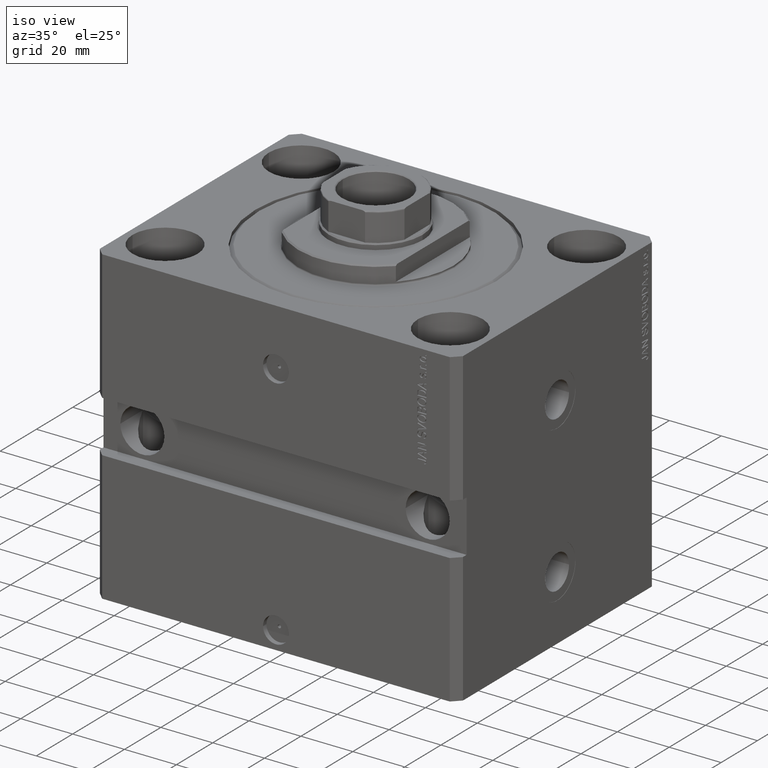
[diagram: clean part render]
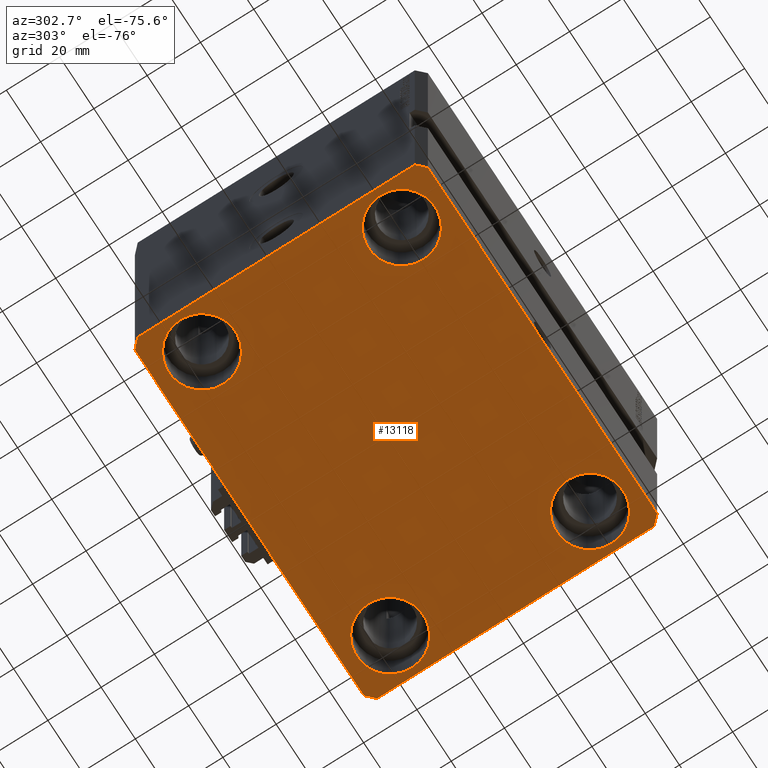
[diagram: tour spotlight — one face highlighted and labeled with its STEP entity id]
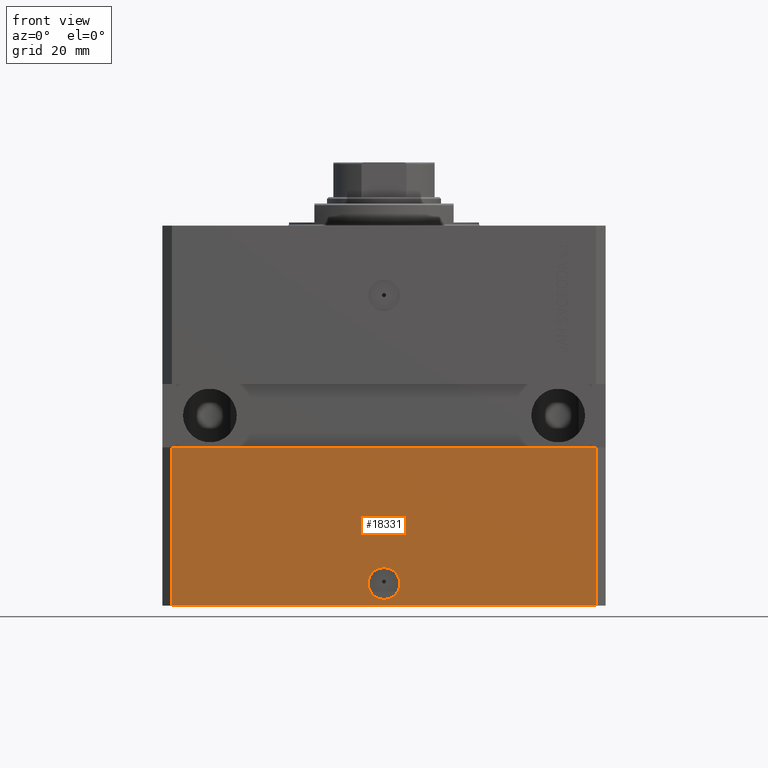
[diagram: tour spotlight — one face highlighted and labeled with its STEP entity id]
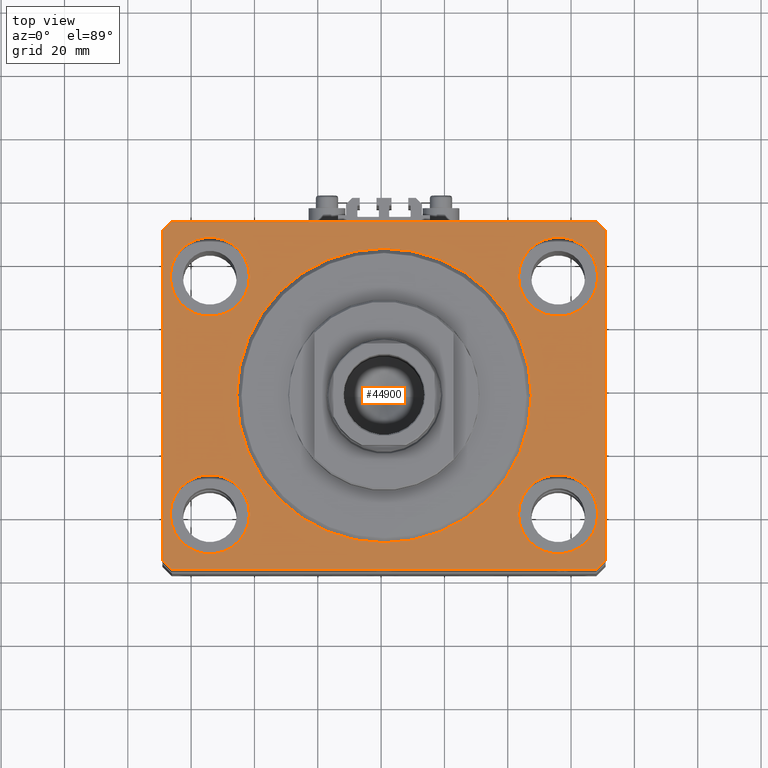
[diagram: tour spotlight — one face highlighted and labeled with its STEP entity id]
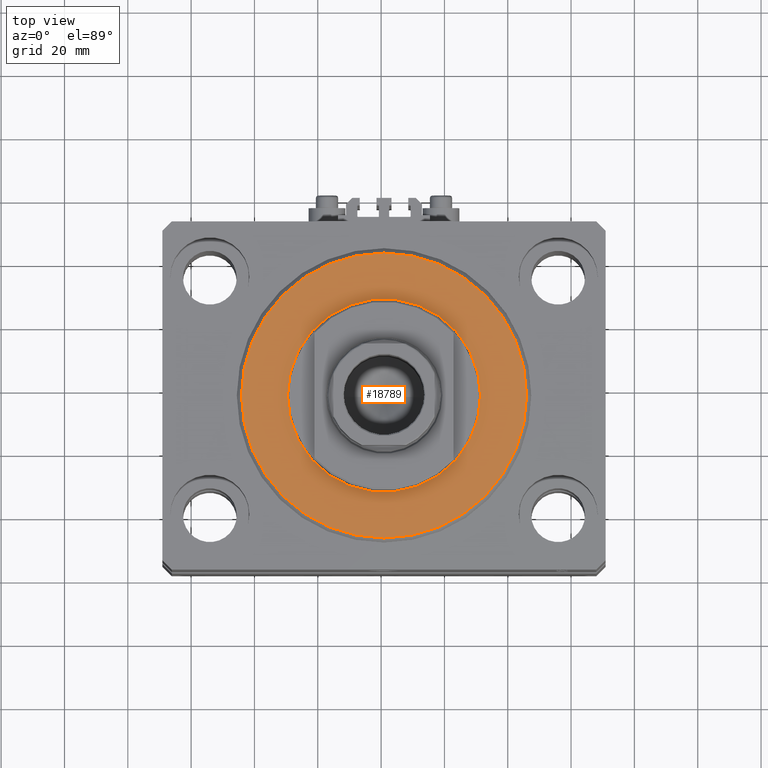
[diagram: tour spotlight — one face highlighted and labeled with its STEP entity id]
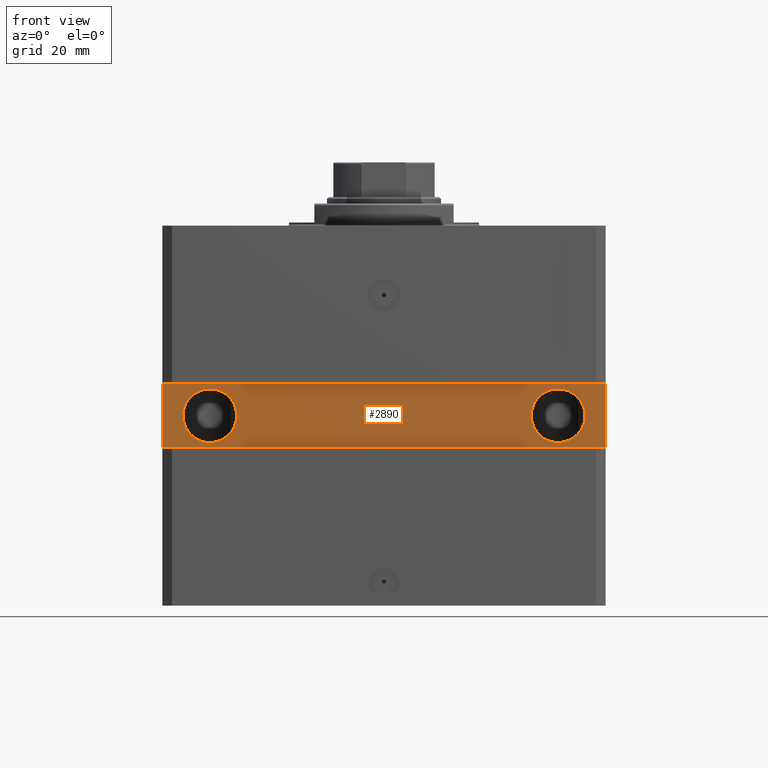
[diagram: tour spotlight — one face highlighted and labeled with its STEP entity id]
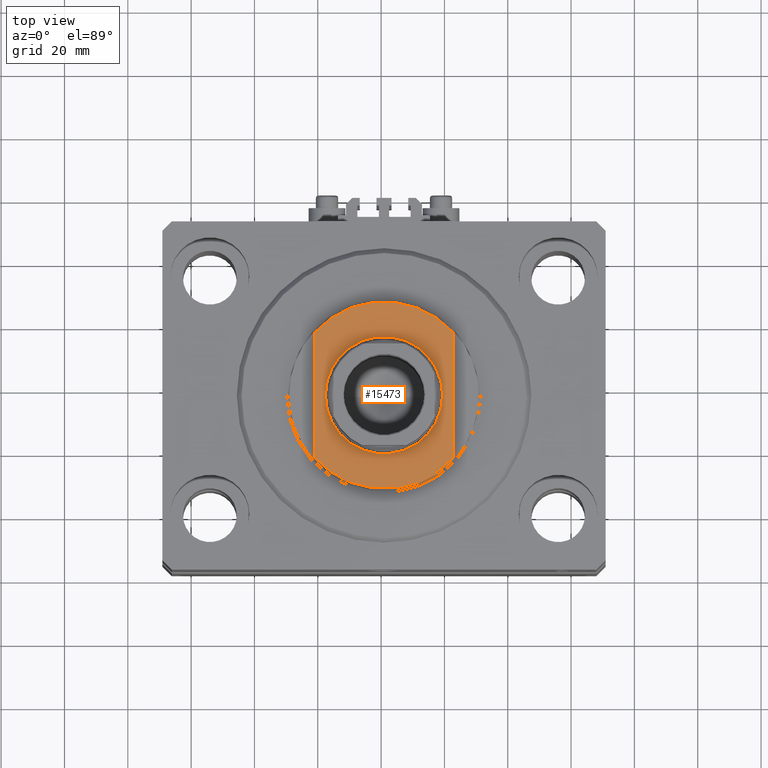
[diagram: tour spotlight — one face highlighted and labeled with its STEP entity id]
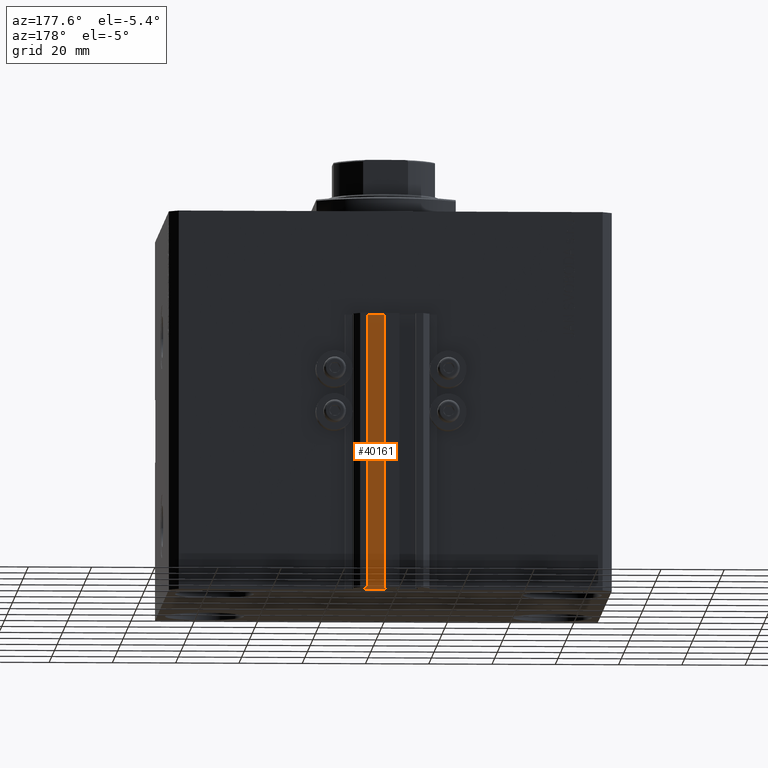
[diagram: tour spotlight — one face highlighted and labeled with its STEP entity id]
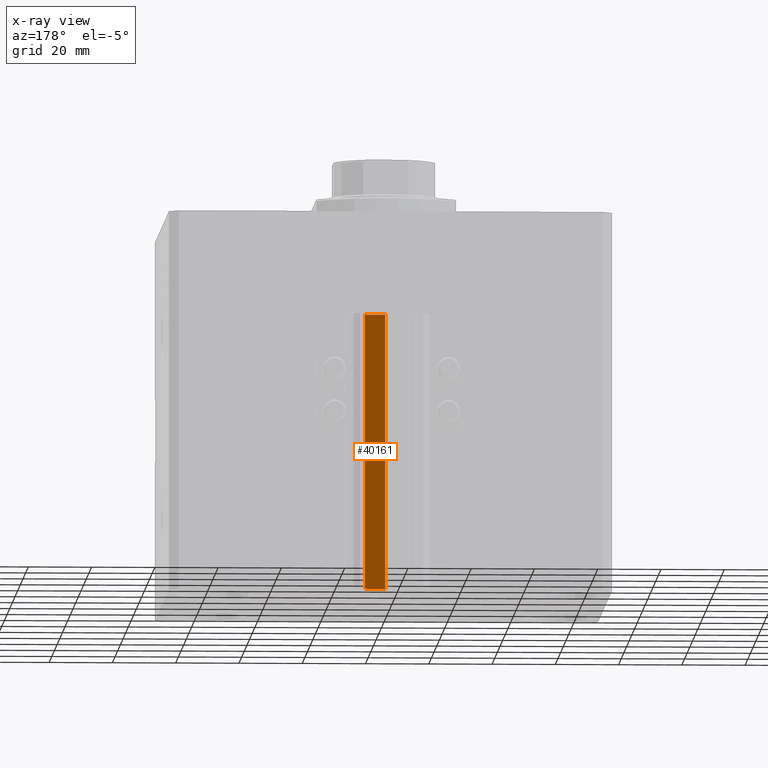
[diagram: x-ray of the same camera — body ghosted, this tour face saturated]
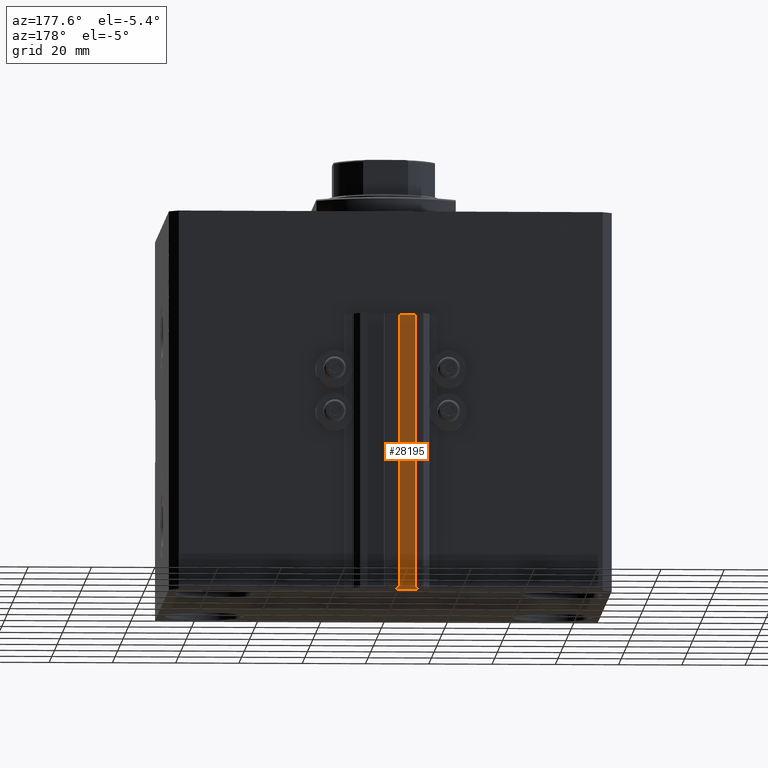
[diagram: tour spotlight — one face highlighted and labeled with its STEP entity id]
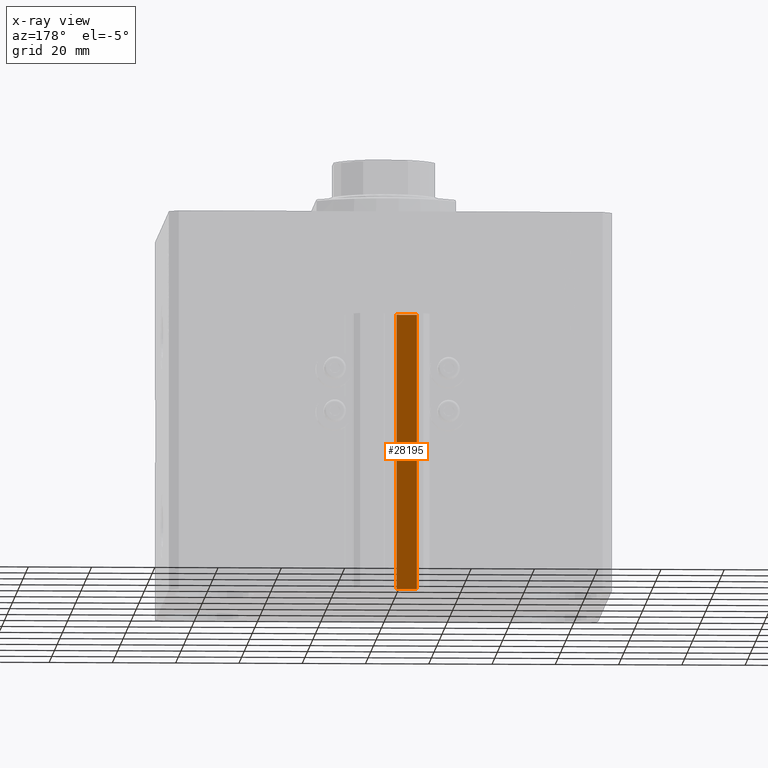
[diagram: x-ray of the same camera — body ghosted, this tour face saturated]
A machine part: a face-by-face anatomy tour. The part has 1129 B-rep faces; the first image is the clean iso view, then the 8 largest visible faces are spotlighted one at a time (largest first), each with its STEP entity span.

Face 1 — auxiliary view, entity #13118. In plain terms, the highlighted planar face has unit normal (0, 0, 1).
Definition (entity closure, byte-faithful):
#77 = ORIENTED_EDGE ( 'NONE', *, *, #21300, .T. ) ;
#148 = VECTOR ( 'NONE', #9613, 1000.000000000000000 ) ;
#483 = DIRECTION ( 'NONE',  ( 5.337610695313255329E-15, 1.000000000000000000, 0.000000000000000000 ) ) ;
#809 = ORIENTED_EDGE ( 'NONE', *, *, #30728, .T. ) ;
#2416 = DIRECTION ( 'NONE',  ( -0.000000000000000000, -0.000000000000000000, 1.000000000000000000 ) ) ;
#2713 = EDGE_CURVE ( 'NONE', #42835, #30656, #28236, .T. ) ;
#3144 = CARTESIAN_POINT ( 'NONE',  ( 55.00000000000000711, 37.50000000000002132, -120.0000000000000000 ) ) ;
#3494 = EDGE_CURVE ( 'NONE', #25304, #27204, #12242, .T. ) ;
#3918 = ORIENTED_EDGE ( 'NONE', *, *, #40495, .F. ) ;
#4311 = VERTEX_POINT ( 'NONE', #48289 ) ;
#4413 = EDGE_LOOP ( 'NONE', ( #77, #26732 ) ) ;
#4737 = FACE_BOUND ( 'NONE', #6452, .T. ) ;
#4899 = LINE ( 'NONE', #28607, #148 ) ;
#6452 = EDGE_LOOP ( 'NONE', ( #44544, #12126 ) ) ;
#6463 = DIRECTION ( 'NONE',  ( 1.000000000000000000, 0.000000000000000000, -0.000000000000000000 ) ) ;
#6507 = EDGE_CURVE ( 'NONE', #17872, #42129, #21939, .T. ) ;
#7271 = CIRCLE ( 'NONE', #12805, 12.49999999999999645 ) ;
#8209 = CARTESIAN_POINT ( 'NONE',  ( 55.00000000000000711, 37.50000000000002132, -120.0000000000000000 ) ) ;
#8478 = FACE_BOUND ( 'NONE', #4413, .T. ) ;
#9095 = CIRCLE ( 'NONE', #17894, 12.49999999999999645 ) ;
#9152 = CARTESIAN_POINT ( 'NONE',  ( 55.00000000000000711, -37.50000000000000711, -120.0000000000000000 ) ) ;
#9450 = DIRECTION ( 'NONE',  ( -0.000000000000000000, -0.000000000000000000, 1.000000000000000000 ) ) ;
#9613 = DIRECTION ( 'NONE',  ( 0.7071067811865466846, -0.7071067811865483499, 0.000000000000000000 ) ) ;
#10886 = CARTESIAN_POINT ( 'NONE',  ( -55.00000000000000711, 37.49999999999999289, -120.0000000000000000 ) ) ;
#10956 = CARTESIAN_POINT ( 'NONE',  ( 67.00000000000001421, -54.99999999999997868, -120.0000000000000000 ) ) ;
#10998 = VERTEX_POINT ( 'NONE', #13169 ) ;
#11083 = VECTOR ( 'NONE', #42647, 1000.000000000000000 ) ;
#12126 = ORIENTED_EDGE ( 'NONE', *, *, #46276, .T. ) ;
#12242 = LINE ( 'NONE', #49261, #19373 ) ;
#12333 = CARTESIAN_POINT ( 'NONE',  ( 42.50000000000000711, 37.50000000000002132, -120.0000000000000000 ) ) ;
#12780 = EDGE_CURVE ( 'NONE', #30364, #26383, #48183, .T. ) ;
#12805 = AXIS2_PLACEMENT_3D ( 'NONE', #22936, #38623, #38126 ) ;
#12848 = ORIENTED_EDGE ( 'NONE', *, *, #29944, .F. ) ;
#13118 = ADVANCED_FACE ( 'NONE', ( #15972, #46398, #8478, #4737, #23734 ), #35180, .F. ) ;
#13169 = CARTESIAN_POINT ( 'NONE',  ( 42.50000000000000711, -37.50000000000000711, -120.0000000000000000 ) ) ;
#13669 = EDGE_CURVE ( 'NONE', #44243, #48429, #15649, .T. ) ;
#13945 = CARTESIAN_POINT ( 'NONE',  ( -55.00000000000000711, -37.50000000000000711, -120.0000000000000000 ) ) ;
#13997 = CARTESIAN_POINT ( 'NONE',  ( -67.00000000000000000, 55.00000000000000000, -120.0000000000000000 ) ) ;
#14120 = VECTOR ( 'NONE', #22481, 1000.000000000000114 ) ;
#14288 = ORIENTED_EDGE ( 'NONE', *, *, #32856, .T. ) ;
#14810 = DIRECTION ( 'NONE',  ( 1.000000000000000000, 0.000000000000000000, 0.000000000000000000 ) ) ;
#14999 = AXIS2_PLACEMENT_3D ( 'NONE', #8209, #23215, #20447 ) ;
#15200 = LINE ( 'NONE', #34672, #23976 ) ;
#15443 = EDGE_CURVE ( 'NONE', #30656, #16294, #26463, .T. ) ;
#15649 = CIRCLE ( 'NONE', #34003, 12.49999999999999645 ) ;
#15972 = FACE_BOUND ( 'NONE', #38254, .T. ) ;
#16203 = ORIENTED_EDGE ( 'NONE', *, *, #41796, .T. ) ;
#16294 = VERTEX_POINT ( 'NONE', #24020 ) ;
#16528 = LINE ( 'NONE', #31020, #23266 ) ;
#17203 = ORIENTED_EDGE ( 'NONE', *, *, #37931, .F. ) ;
#17872 = VERTEX_POINT ( 'NONE', #29140 ) ;
#17894 = AXIS2_PLACEMENT_3D ( 'NONE', #9152, #28389, #28152 ) ;
#18088 = CARTESIAN_POINT ( 'NONE',  ( -55.00000000000000711, -37.50000000000000711, -120.0000000000000000 ) ) ;
#18184 = EDGE_LOOP ( 'NONE', ( #14288, #16203 ) ) ;
#19373 = VECTOR ( 'NONE', #27505, 1000.000000000000000 ) ;
#20119 = CIRCLE ( 'NONE', #41620, 12.49999999999999645 ) ;
#20447 = DIRECTION ( 'NONE',  ( 1.000000000000000000, 0.000000000000000000, 0.000000000000000000 ) ) ;
#20851 = ORIENTED_EDGE ( 'NONE', *, *, #12780, .F. ) ;
#20956 = CARTESIAN_POINT ( 'NONE',  ( 0.000000000000000000, 0.000000000000000000, -120.0000000000000000 ) ) ;
#21300 = EDGE_CURVE ( 'NONE', #42129, #17872, #26184, .T. ) ;
#21452 = CARTESIAN_POINT ( 'NONE',  ( -42.50000000000000711, -37.50000000000000711, -120.0000000000000000 ) ) ;
#21939 = CIRCLE ( 'NONE', #25131, 12.49999999999999645 ) ;
#22309 = CIRCLE ( 'NONE', #42176, 12.49999999999999645 ) ;
#22464 = CARTESIAN_POINT ( 'NONE',  ( 67.00000000000001421, -54.99999999999997868, -120.0000000000000000 ) ) ;
#22481 = DIRECTION ( 'NONE',  ( 0.7071067811865474617, 0.7071067811865474617, 0.000000000000000000 ) ) ;
#22936 = CARTESIAN_POINT ( 'NONE',  ( 55.00000000000000711, -37.50000000000000711, -120.0000000000000000 ) ) ;
#23215 = DIRECTION ( 'NONE',  ( -0.000000000000000000, -0.000000000000000000, 1.000000000000000000 ) ) ;
#23266 = VECTOR ( 'NONE', #28029, 1000.000000000000000 ) ;
#23578 = CARTESIAN_POINT ( 'NONE',  ( 70.00000000000056843, 51.99999999999996447, -120.0000000000000000 ) ) ;
#23734 = FACE_OUTER_BOUND ( 'NONE', #39827, .T. ) ;
#23775 = CARTESIAN_POINT ( 'NONE',  ( -69.99999999999998579, 51.99999999999999289, -120.0000000000000000 ) ) ;
#23976 = VECTOR ( 'NONE', #483, 1000.000000000000000 ) ;
#24001 = CARTESIAN_POINT ( 'NONE',  ( -67.50000000000000000, -37.50000000000000711, -120.0000000000000000 ) ) ;
#24020 = CARTESIAN_POINT ( 'NONE',  ( 70.00000000000000000, -51.99999999999999289, -120.0000000000000000 ) ) ;
#24321 = EDGE_CURVE ( 'NONE', #46031, #48537, #22309, .T. ) ;
#24489 = CARTESIAN_POINT ( 'NONE',  ( -67.00000000000001421, -55.00000000000000000, -120.0000000000000000 ) ) ;
#24658 = CARTESIAN_POINT ( 'NONE',  ( -67.00000000000001421, -55.00000000000000000, -120.0000000000000000 ) ) ;
#24958 = DIRECTION ( 'NONE',  ( 0.000000000000000000, 0.000000000000000000, 1.000000000000000000 ) ) ;
#24970 = DIRECTION ( 'NONE',  ( 1.000000000000000000, 0.000000000000000000, 0.000000000000000000 ) ) ;
#25131 = AXIS2_PLACEMENT_3D ( 'NONE', #3144, #9450, #49054 ) ;
#25304 = VERTEX_POINT ( 'NONE', #23578 ) ;
#26184 = CIRCLE ( 'NONE', #14999, 12.49999999999999645 ) ;
#26383 = VERTEX_POINT ( 'NONE', #23775 ) ;
#26463 = LINE ( 'NONE', #10956, #14120 ) ;
#26732 = ORIENTED_EDGE ( 'NONE', *, *, #6507, .T. ) ;
#27204 = VERTEX_POINT ( 'NONE', #28984 ) ;
#27505 = DIRECTION ( 'NONE',  ( -0.7071067811865344721, 0.7071067811865606734, 0.000000000000000000 ) ) ;
#27714 = ORIENTED_EDGE ( 'NONE', *, *, #42510, .F. ) ;
#28029 = DIRECTION ( 'NONE',  ( -2.668805347656626678E-16, -1.000000000000000000, 0.000000000000000000 ) ) ;
#28152 = DIRECTION ( 'NONE',  ( 1.000000000000000000, 0.000000000000000000, 0.000000000000000000 ) ) ;
#28236 = LINE ( 'NONE', #24489, #38480 ) ;
#28389 = DIRECTION ( 'NONE',  ( -0.000000000000000000, -0.000000000000000000, 1.000000000000000000 ) ) ;
#28607 = CARTESIAN_POINT ( 'NONE',  ( -70.00000000000001421, -51.99999999999999289, -120.0000000000000000 ) ) ;
#28984 = CARTESIAN_POINT ( 'NONE',  ( 67.00000000000061107, 55.00000000000002132, -120.0000000000000000 ) ) ;
#29140 = CARTESIAN_POINT ( 'NONE',  ( 67.50000000000000000, 37.50000000000002132, -120.0000000000000000 ) ) ;
#29196 = DIRECTION ( 'NONE',  ( -0.000000000000000000, -0.000000000000000000, 1.000000000000000000 ) ) ;
#29944 = EDGE_CURVE ( 'NONE', #4311, #42835, #4899, .T. ) ;
#30364 = VERTEX_POINT ( 'NONE', #37706 ) ;
#30656 = VERTEX_POINT ( 'NONE', #22464 ) ;
#30728 = EDGE_CURVE ( 'NONE', #48429, #44243, #20119, .T. ) ;
#31020 = CARTESIAN_POINT ( 'NONE',  ( -69.99999999999998579, 51.99999999999999289, -120.0000000000000000 ) ) ;
#31468 = CARTESIAN_POINT ( 'NONE',  ( -55.00000000000000711, 37.49999999999999289, -120.0000000000000000 ) ) ;
#31617 = ORIENTED_EDGE ( 'NONE', *, *, #15443, .F. ) ;
#31682 = CARTESIAN_POINT ( 'NONE',  ( 67.00000000000061107, 55.00000000000002132, -120.0000000000000000 ) ) ;
#31684 = ORIENTED_EDGE ( 'NONE', *, *, #3494, .F. ) ;
#32856 = EDGE_CURVE ( 'NONE', #10998, #37007, #9095, .T. ) ;
#33145 = CARTESIAN_POINT ( 'NONE',  ( -42.50000000000000711, 37.49999999999999289, -120.0000000000000000 ) ) ;
#33746 = ORIENTED_EDGE ( 'NONE', *, *, #2713, .F. ) ;
#34003 = AXIS2_PLACEMENT_3D ( 'NONE', #18088, #48995, #14810 ) ;
#34380 = AXIS2_PLACEMENT_3D ( 'NONE', #31468, #43409, #24970 ) ;
#34672 = CARTESIAN_POINT ( 'NONE',  ( 70.00000000000000000, -51.99999999999999289, -120.0000000000000000 ) ) ;
#35180 = PLANE ( 'NONE',  #41127 ) ;
#36963 = DIRECTION ( 'NONE',  ( -0.7071067811865451302, -0.7071067811865500152, 0.000000000000000000 ) ) ;
#37007 = VERTEX_POINT ( 'NONE', #48293 ) ;
#37706 = CARTESIAN_POINT ( 'NONE',  ( -67.00000000000000000, 55.00000000000000000, -120.0000000000000000 ) ) ;
#37931 = EDGE_CURVE ( 'NONE', #27204, #30364, #45904, .T. ) ;
#38126 = DIRECTION ( 'NONE',  ( 1.000000000000000000, 0.000000000000000000, 0.000000000000000000 ) ) ;
#38254 = EDGE_LOOP ( 'NONE', ( #809, #40885 ) ) ;
#38480 = VECTOR ( 'NONE', #40421, 1000.000000000000000 ) ;
#38623 = DIRECTION ( 'NONE',  ( -0.000000000000000000, -0.000000000000000000, 1.000000000000000000 ) ) ;
#38735 = VECTOR ( 'NONE', #36963, 1000.000000000000114 ) ;
#39827 = EDGE_LOOP ( 'NONE', ( #17203, #31684, #3918, #31617, #33746, #12848, #27714, #20851 ) ) ;
#40421 = DIRECTION ( 'NONE',  ( 1.000000000000000000, 1.553483709829976241E-16, 0.000000000000000000 ) ) ;
#40495 = EDGE_CURVE ( 'NONE', #16294, #25304, #15200, .T. ) ;
#40885 = ORIENTED_EDGE ( 'NONE', *, *, #13669, .T. ) ;
#41127 = AXIS2_PLACEMENT_3D ( 'NONE', #20956, #24958, #6463 ) ;
#41620 = AXIS2_PLACEMENT_3D ( 'NONE', #13945, #29196, #48375 ) ;
#41702 = CARTESIAN_POINT ( 'NONE',  ( -67.50000000000000000, 37.49999999999999289, -120.0000000000000000 ) ) ;
#41796 = EDGE_CURVE ( 'NONE', #37007, #10998, #7271, .T. ) ;
#42129 = VERTEX_POINT ( 'NONE', #12333 ) ;
#42176 = AXIS2_PLACEMENT_3D ( 'NONE', #10886, #2416, #48078 ) ;
#42510 = EDGE_CURVE ( 'NONE', #26383, #4311, #16528, .T. ) ;
#42647 = DIRECTION ( 'NONE',  ( -1.000000000000000000, -1.553483709829969339E-16, 0.000000000000000000 ) ) ;
#42835 = VERTEX_POINT ( 'NONE', #24658 ) ;
#43409 = DIRECTION ( 'NONE',  ( -0.000000000000000000, -0.000000000000000000, 1.000000000000000000 ) ) ;
#44243 = VERTEX_POINT ( 'NONE', #21452 ) ;
#44544 = ORIENTED_EDGE ( 'NONE', *, *, #24321, .T. ) ;
#45526 = CIRCLE ( 'NONE', #34380, 12.49999999999999645 ) ;
#45904 = LINE ( 'NONE', #31682, #11083 ) ;
#46031 = VERTEX_POINT ( 'NONE', #41702 ) ;
#46276 = EDGE_CURVE ( 'NONE', #48537, #46031, #45526, .T. ) ;
#46398 = FACE_BOUND ( 'NONE', #18184, .T. ) ;
#48078 = DIRECTION ( 'NONE',  ( 1.000000000000000000, 0.000000000000000000, 0.000000000000000000 ) ) ;
#48183 = LINE ( 'NONE', #13997, #38735 ) ;
#48289 = CARTESIAN_POINT ( 'NONE',  ( -70.00000000000001421, -51.99999999999999289, -120.0000000000000000 ) ) ;
#48293 = CARTESIAN_POINT ( 'NONE',  ( 67.50000000000000000, -37.50000000000000711, -120.0000000000000000 ) ) ;
#48375 = DIRECTION ( 'NONE',  ( 1.000000000000000000, 0.000000000000000000, 0.000000000000000000 ) ) ;
#48429 = VERTEX_POINT ( 'NONE', #24001 ) ;
#48537 = VERTEX_POINT ( 'NONE', #33145 ) ;
#48995 = DIRECTION ( 'NONE',  ( -0.000000000000000000, -0.000000000000000000, 1.000000000000000000 ) ) ;
#49054 = DIRECTION ( 'NONE',  ( 1.000000000000000000, 0.000000000000000000, 0.000000000000000000 ) ) ;
#49261 = CARTESIAN_POINT ( 'NONE',  ( 70.00000000000056843, 51.99999999999996447, -120.0000000000000000 ) ) ;

Face 2 — front view, entity #18331. In plain terms, the highlighted planar face has unit normal (0, -1, 0).
Definition (entity closure, byte-faithful):
#1 = ORIENTED_EDGE ( 'NONE', *, *, #33187, .F. ) ;
#1769 = DIRECTION ( 'NONE',  ( 1.000000000000000000, 0.000000000000000000, 0.000000000000000000 ) ) ;
#2713 = EDGE_CURVE ( 'NONE', #42835, #30656, #28236, .T. ) ;
#4213 = VERTEX_POINT ( 'NONE', #28127 ) ;
#4775 = EDGE_CURVE ( 'NONE', #20469, #37375, #26606, .T. ) ;
#4833 = ORIENTED_EDGE ( 'NONE', *, *, #4775, .F. ) ;
#6216 = LINE ( 'NONE', #41144, #30916 ) ;
#8565 = LINE ( 'NONE', #31543, #11160 ) ;
#9048 = AXIS2_PLACEMENT_3D ( 'NONE', #43440, #12988, #1769 ) ;
#10241 = AXIS2_PLACEMENT_3D ( 'NONE', #15548, #30786, #45981 ) ;
#10700 = ORIENTED_EDGE ( 'NONE', *, *, #2713, .T. ) ;
#10899 = ORIENTED_EDGE ( 'NONE', *, *, #25264, .T. ) ;
#11160 = VECTOR ( 'NONE', #36416, 1000.000000000000000 ) ;
#11618 = ORIENTED_EDGE ( 'NONE', *, *, #20570, .F. ) ;
#12988 = DIRECTION ( 'NONE',  ( 1.176083712526788232E-16, -1.000000000000000000, 0.000000000000000000 ) ) ;
#15548 = CARTESIAN_POINT ( 'NONE',  ( -67.00000000000001421, -55.00000000000000000, -120.0000000000000000 ) ) ;
#15795 = FACE_BOUND ( 'NONE', #42774, .T. ) ;
#17570 = EDGE_CURVE ( 'NONE', #42835, #31843, #6216, .T. ) ;
#18331 = ADVANCED_FACE ( 'NONE', ( #15795, #31028 ), #35005, .T. ) ;
#20469 = VERTEX_POINT ( 'NONE', #26940 ) ;
#20570 = EDGE_CURVE ( 'NONE', #37375, #20469, #28638, .T. ) ;
#22464 = CARTESIAN_POINT ( 'NONE',  ( 67.00000000000001421, -54.99999999999997868, -120.0000000000000000 ) ) ;
#23360 = DIRECTION ( 'NONE',  ( 1.000000000000000000, 9.912705577010323084E-17, 0.000000000000000000 ) ) ;
#24489 = CARTESIAN_POINT ( 'NONE',  ( -67.00000000000001421, -55.00000000000000000, -120.0000000000000000 ) ) ;
#24658 = CARTESIAN_POINT ( 'NONE',  ( -67.00000000000001421, -55.00000000000000000, -120.0000000000000000 ) ) ;
#24961 = DIRECTION ( 'NONE',  ( 0.000000000000000000, 0.000000000000000000, 1.000000000000000000 ) ) ;
#25264 = EDGE_CURVE ( 'NONE', #30656, #4213, #8565, .T. ) ;
#26601 = CARTESIAN_POINT ( 'NONE',  ( -70.00000000000001421, -54.99999999999999289, -70.00000000000000000 ) ) ;
#26606 = CIRCLE ( 'NONE', #9048, 5.000000000000006217 ) ;
#26940 = CARTESIAN_POINT ( 'NONE',  ( 5.000000000000015099, -54.99999999999998579, -112.9999999999999858 ) ) ;
#27084 = LINE ( 'NONE', #26601, #29072 ) ;
#27124 = CARTESIAN_POINT ( 'NONE',  ( -67.00000000000002842, -54.99999999999999289, -70.00000000000000000 ) ) ;
#28127 = CARTESIAN_POINT ( 'NONE',  ( 67.00000000000001421, -54.99999999999997868, -70.00000000000000000 ) ) ;
#28236 = LINE ( 'NONE', #24489, #38480 ) ;
#28638 = CIRCLE ( 'NONE', #38874, 5.000000000000006217 ) ;
#28673 = ORIENTED_EDGE ( 'NONE', *, *, #17570, .F. ) ;
#29072 = VECTOR ( 'NONE', #23360, 1000.000000000000000 ) ;
#30656 = VERTEX_POINT ( 'NONE', #22464 ) ;
#30786 = DIRECTION ( 'NONE',  ( 1.553483709829976241E-16, -1.000000000000000000, 0.000000000000000000 ) ) ;
#30916 = VECTOR ( 'NONE', #24961, 1000.000000000000000 ) ;
#31028 = FACE_OUTER_BOUND ( 'NONE', #38101, .T. ) ;
#31543 = CARTESIAN_POINT ( 'NONE',  ( 67.00000000000001421, -54.99999999999997868, -120.0000000000000000 ) ) ;
#31843 = VERTEX_POINT ( 'NONE', #27124 ) ;
#33187 = EDGE_CURVE ( 'NONE', #31843, #4213, #27084, .T. ) ;
#33631 = CARTESIAN_POINT ( 'NONE',  ( 8.544160404064867231E-15, -54.99999999999998579, -112.9999999999999858 ) ) ;
#35005 = PLANE ( 'NONE',  #10241 ) ;
#36416 = DIRECTION ( 'NONE',  ( 0.000000000000000000, 0.000000000000000000, 1.000000000000000000 ) ) ;
#37375 = VERTEX_POINT ( 'NONE', #37985 ) ;
#37985 = CARTESIAN_POINT ( 'NONE',  ( -4.999999999999997335, -54.99999999999998579, -112.9999999999999858 ) ) ;
#38101 = EDGE_LOOP ( 'NONE', ( #1, #28673, #10700, #10899 ) ) ;
#38480 = VECTOR ( 'NONE', #40421, 1000.000000000000000 ) ;
#38874 = AXIS2_PLACEMENT_3D ( 'NONE', #33631, #41105, #48338 ) ;
#40421 = DIRECTION ( 'NONE',  ( 1.000000000000000000, 1.553483709829976241E-16, 0.000000000000000000 ) ) ;
#41105 = DIRECTION ( 'NONE',  ( 1.176083712526788232E-16, -1.000000000000000000, 0.000000000000000000 ) ) ;
#41144 = CARTESIAN_POINT ( 'NONE',  ( -67.00000000000001421, -55.00000000000000000, -120.0000000000000000 ) ) ;
#42774 = EDGE_LOOP ( 'NONE', ( #4833, #11618 ) ) ;
#42835 = VERTEX_POINT ( 'NONE', #24658 ) ;
#43440 = CARTESIAN_POINT ( 'NONE',  ( 8.544160404064867231E-15, -54.99999999999998579, -112.9999999999999858 ) ) ;
#45981 = DIRECTION ( 'NONE',  ( 1.000000000000000000, 1.553483709829976241E-16, 0.000000000000000000 ) ) ;
#48338 = DIRECTION ( 'NONE',  ( 1.000000000000000000, 0.000000000000000000, 0.000000000000000000 ) ) ;

Face 3 — top view, entity #44900. In plain terms, the highlighted planar face has unit normal (0, 0, 1).
Definition (entity closure, byte-faithful):
#206 = VERTEX_POINT ( 'NONE', #48256 ) ;
#633 = CARTESIAN_POINT ( 'NONE',  ( -67.50000000000000000, 37.49999999999999289, 0.000000000000000000 ) ) ;
#883 = ORIENTED_EDGE ( 'NONE', *, *, #44638, .T. ) ;
#1999 = DIRECTION ( 'NONE',  ( -0.7071067811865451302, -0.7071067811865500152, 0.000000000000000000 ) ) ;
#2765 = CIRCLE ( 'NONE', #45011, 46.50000000000000000 ) ;
#2836 = PLANE ( 'NONE',  #31297 ) ;
#2980 = DIRECTION ( 'NONE',  ( 0.000000000000000000, 0.000000000000000000, 1.000000000000000000 ) ) ;
#3321 = FACE_BOUND ( 'NONE', #40144, .T. ) ;
#4108 = LINE ( 'NONE', #26843, #4331 ) ;
#4331 = VECTOR ( 'NONE', #30584, 1000.000000000000000 ) ;
#5101 = DIRECTION ( 'NONE',  ( 0.000000000000000000, 0.000000000000000000, 1.000000000000000000 ) ) ;
#5801 = ORIENTED_EDGE ( 'NONE', *, *, #48392, .F. ) ;
#5831 = LINE ( 'NONE', #9564, #16340 ) ;
#6200 = ORIENTED_EDGE ( 'NONE', *, *, #40970, .T. ) ;
#6417 = EDGE_CURVE ( 'NONE', #28790, #25728, #2765, .T. ) ;
#6699 = CIRCLE ( 'NONE', #36165, 12.49999999999999645 ) ;
#6827 = DIRECTION ( 'NONE',  ( 0.000000000000000000, 0.000000000000000000, 1.000000000000000000 ) ) ;
#7070 = FACE_BOUND ( 'NONE', #21124, .T. ) ;
#7091 = ORIENTED_EDGE ( 'NONE', *, *, #40332, .T. ) ;
#7144 = CARTESIAN_POINT ( 'NONE',  ( -67.00000000000000000, 55.00000000000000000, 0.000000000000000000 ) ) ;
#7630 = EDGE_CURVE ( 'NONE', #13389, #35806, #6699, .T. ) ;
#8724 = ORIENTED_EDGE ( 'NONE', *, *, #38272, .F. ) ;
#8957 = DIRECTION ( 'NONE',  ( -1.000000000000000000, -1.553483709829969339E-16, 0.000000000000000000 ) ) ;
#9000 = CARTESIAN_POINT ( 'NONE',  ( -70.00000000000001421, -51.99999999999999289, 0.000000000000000000 ) ) ;
#9040 = CARTESIAN_POINT ( 'NONE',  ( 70.00000000000056843, 51.99999999999996447, 0.000000000000000000 ) ) ;
#9085 = CARTESIAN_POINT ( 'NONE',  ( -55.00000000000000711, -37.50000000000000711, 0.000000000000000000 ) ) ;
#9132 = EDGE_CURVE ( 'NONE', #18656, #26291, #40997, .T. ) ;
#9350 = ORIENTED_EDGE ( 'NONE', *, *, #9132, .F. ) ;
#9451 = DIRECTION ( 'NONE',  ( 0.000000000000000000, 0.000000000000000000, 1.000000000000000000 ) ) ;
#9475 = CIRCLE ( 'NONE', #45359, 12.49999999999999645 ) ;
#9564 = CARTESIAN_POINT ( 'NONE',  ( 70.00000000000000000, -51.99999999999999289, 0.000000000000000000 ) ) ;
#9814 = CARTESIAN_POINT ( 'NONE',  ( 0.000000000000000000, 0.000000000000000000, 0.000000000000000000 ) ) ;
#10365 = LINE ( 'NONE', #44302, #31154 ) ;
#10572 = FACE_OUTER_BOUND ( 'NONE', #46545, .T. ) ;
#10807 = DIRECTION ( 'NONE',  ( 0.000000000000000000, 0.000000000000000000, 1.000000000000000000 ) ) ;
#11285 = VECTOR ( 'NONE', #19851, 1000.000000000000114 ) ;
#11490 = EDGE_CURVE ( 'NONE', #38330, #34683, #5831, .T. ) ;
#11544 = EDGE_LOOP ( 'NONE', ( #40135, #5801 ) ) ;
#12227 = VERTEX_POINT ( 'NONE', #19605 ) ;
#12361 = EDGE_CURVE ( 'NONE', #26291, #18656, #18812, .T. ) ;
#13207 = CIRCLE ( 'NONE', #19629, 12.49999999999999645 ) ;
#13250 = EDGE_CURVE ( 'NONE', #32923, #206, #13207, .T. ) ;
#13389 = VERTEX_POINT ( 'NONE', #633 ) ;
#13449 = AXIS2_PLACEMENT_3D ( 'NONE', #9814, #47987, #33041 ) ;
#13805 = DIRECTION ( 'NONE',  ( 5.337610695313255329E-15, 1.000000000000000000, 0.000000000000000000 ) ) ;
#14653 = ORIENTED_EDGE ( 'NONE', *, *, #38549, .T. ) ;
#14734 = EDGE_CURVE ( 'NONE', #36645, #36976, #26861, .T. ) ;
#15379 = VERTEX_POINT ( 'NONE', #9000 ) ;
#15675 = DIRECTION ( 'NONE',  ( 0.000000000000000000, 0.000000000000000000, 1.000000000000000000 ) ) ;
#15842 = LINE ( 'NONE', #34805, #11285 ) ;
#16109 = AXIS2_PLACEMENT_3D ( 'NONE', #26385, #25903, #33373 ) ;
#16340 = VECTOR ( 'NONE', #13805, 1000.000000000000000 ) ;
#16828 = DIRECTION ( 'NONE',  ( 1.000000000000000000, 0.000000000000000000, 0.000000000000000000 ) ) ;
#16864 = CARTESIAN_POINT ( 'NONE',  ( 46.50000000000000000, 0.000000000000000000, 0.000000000000000000 ) ) ;
#17206 = DIRECTION ( 'NONE',  ( 1.000000000000000000, 0.000000000000000000, 0.000000000000000000 ) ) ;
#17829 = CARTESIAN_POINT ( 'NONE',  ( -55.00000000000000711, -37.50000000000000711, 0.000000000000000000 ) ) ;
#17882 = CARTESIAN_POINT ( 'NONE',  ( 42.50000000000000711, -37.50000000000000711, 0.000000000000000000 ) ) ;
#17918 = VERTEX_POINT ( 'NONE', #7144 ) ;
#17976 = DIRECTION ( 'NONE',  ( 1.000000000000000000, 0.000000000000000000, 0.000000000000000000 ) ) ;
#18128 = ORIENTED_EDGE ( 'NONE', *, *, #6417, .F. ) ;
#18656 = VERTEX_POINT ( 'NONE', #43594 ) ;
#18713 = AXIS2_PLACEMENT_3D ( 'NONE', #17829, #10807, #26061 ) ;
#18812 = CIRCLE ( 'NONE', #24382, 12.49999999999999645 ) ;
#19484 = CARTESIAN_POINT ( 'NONE',  ( 67.00000000000061107, 55.00000000000002132, 0.000000000000000000 ) ) ;
#19605 = CARTESIAN_POINT ( 'NONE',  ( 67.00000000000061107, 55.00000000000002132, 0.000000000000000000 ) ) ;
#19629 = AXIS2_PLACEMENT_3D ( 'NONE', #48371, #9451, #17206 ) ;
#19661 = EDGE_LOOP ( 'NONE', ( #21893, #30879 ) ) ;
#19851 = DIRECTION ( 'NONE',  ( 0.7071067811865474617, 0.7071067811865474617, 0.000000000000000000 ) ) ;
#20250 = EDGE_CURVE ( 'NONE', #35806, #13389, #9475, .T. ) ;
#20536 = LINE ( 'NONE', #9040, #37513 ) ;
#21124 = EDGE_LOOP ( 'NONE', ( #22409, #9350 ) ) ;
#21893 = ORIENTED_EDGE ( 'NONE', *, *, #20250, .F. ) ;
#22409 = ORIENTED_EDGE ( 'NONE', *, *, #12361, .F. ) ;
#23158 = CARTESIAN_POINT ( 'NONE',  ( -42.50000000000000711, 37.49999999999999289, 0.000000000000000000 ) ) ;
#23165 = VECTOR ( 'NONE', #1999, 1000.000000000000114 ) ;
#23994 = VERTEX_POINT ( 'NONE', #28218 ) ;
#24267 = LINE ( 'NONE', #47650, #23165 ) ;
#24382 = AXIS2_PLACEMENT_3D ( 'NONE', #9085, #5101, #16828 ) ;
#24932 = CIRCLE ( 'NONE', #27314, 12.49999999999999645 ) ;
#25329 = VECTOR ( 'NONE', #8957, 1000.000000000000000 ) ;
#25369 = DIRECTION ( 'NONE',  ( 1.000000000000000000, 1.553483709829976241E-16, 0.000000000000000000 ) ) ;
#25579 = FACE_BOUND ( 'NONE', #19661, .T. ) ;
#25728 = VERTEX_POINT ( 'NONE', #16864 ) ;
#25828 = FACE_BOUND ( 'NONE', #34337, .T. ) ;
#25857 = CARTESIAN_POINT ( 'NONE',  ( 55.00000000000000711, -37.50000000000000711, 0.000000000000000000 ) ) ;
#25903 = DIRECTION ( 'NONE',  ( 0.000000000000000000, 0.000000000000000000, 1.000000000000000000 ) ) ;
#26061 = DIRECTION ( 'NONE',  ( 1.000000000000000000, 0.000000000000000000, 0.000000000000000000 ) ) ;
#26062 = FACE_BOUND ( 'NONE', #11544, .T. ) ;
#26291 = VERTEX_POINT ( 'NONE', #39997 ) ;
#26385 = CARTESIAN_POINT ( 'NONE',  ( 55.00000000000000711, 37.50000000000002132, 0.000000000000000000 ) ) ;
#26843 = CARTESIAN_POINT ( 'NONE',  ( -69.99999999999998579, 51.99999999999999289, 0.000000000000000000 ) ) ;
#26861 = CIRCLE ( 'NONE', #38803, 12.49999999999999645 ) ;
#27197 = CARTESIAN_POINT ( 'NONE',  ( -67.00000000000001421, -55.00000000000000000, 0.000000000000000000 ) ) ;
#27219 = CARTESIAN_POINT ( 'NONE',  ( 70.00000000000056843, 51.99999999999996447, 0.000000000000000000 ) ) ;
#27314 = AXIS2_PLACEMENT_3D ( 'NONE', #30737, #45933, #42190 ) ;
#27698 = EDGE_CURVE ( 'NONE', #34683, #12227, #20536, .T. ) ;
#28097 = CIRCLE ( 'NONE', #16109, 12.49999999999999645 ) ;
#28218 = CARTESIAN_POINT ( 'NONE',  ( -69.99999999999998579, 51.99999999999999289, 0.000000000000000000 ) ) ;
#28476 = CARTESIAN_POINT ( 'NONE',  ( 70.00000000000000000, -51.99999999999999289, 0.000000000000000000 ) ) ;
#28790 = VERTEX_POINT ( 'NONE', #48640 ) ;
#28840 = CARTESIAN_POINT ( 'NONE',  ( 67.00000000000001421, -54.99999999999997868, 0.000000000000000000 ) ) ;
#29262 = ORIENTED_EDGE ( 'NONE', *, *, #33108, .T. ) ;
#30367 = LINE ( 'NONE', #42796, #45387 ) ;
#30584 = DIRECTION ( 'NONE',  ( -2.668805347656626678E-16, -1.000000000000000000, 0.000000000000000000 ) ) ;
#30737 = CARTESIAN_POINT ( 'NONE',  ( 55.00000000000000711, -37.50000000000000711, 0.000000000000000000 ) ) ;
#30783 = ORIENTED_EDGE ( 'NONE', *, *, #11490, .T. ) ;
#30879 = ORIENTED_EDGE ( 'NONE', *, *, #7630, .F. ) ;
#30983 = EDGE_CURVE ( 'NONE', #206, #32923, #28097, .T. ) ;
#31154 = VECTOR ( 'NONE', #25369, 1000.000000000000000 ) ;
#31297 = AXIS2_PLACEMENT_3D ( 'NONE', #33293, #6827, #45733 ) ;
#31594 = DIRECTION ( 'NONE',  ( 0.7071067811865466846, -0.7071067811865483499, 0.000000000000000000 ) ) ;
#31955 = VERTEX_POINT ( 'NONE', #28840 ) ;
#32923 = VERTEX_POINT ( 'NONE', #40095 ) ;
#33041 = DIRECTION ( 'NONE',  ( 1.000000000000000000, 0.000000000000000000, 0.000000000000000000 ) ) ;
#33108 = EDGE_CURVE ( 'NONE', #23994, #15379, #4108, .T. ) ;
#33293 = CARTESIAN_POINT ( 'NONE',  ( 0.000000000000000000, 0.000000000000000000, 0.000000000000000000 ) ) ;
#33373 = DIRECTION ( 'NONE',  ( 1.000000000000000000, 0.000000000000000000, 0.000000000000000000 ) ) ;
#33862 = EDGE_CURVE ( 'NONE', #12227, #17918, #46881, .T. ) ;
#33957 = DIRECTION ( 'NONE',  ( 0.000000000000000000, 0.000000000000000000, 1.000000000000000000 ) ) ;
#33972 = ORIENTED_EDGE ( 'NONE', *, *, #33862, .T. ) ;
#34159 = CARTESIAN_POINT ( 'NONE',  ( -55.00000000000000711, 37.49999999999999289, 0.000000000000000000 ) ) ;
#34337 = EDGE_LOOP ( 'NONE', ( #8724, #18128 ) ) ;
#34622 = CARTESIAN_POINT ( 'NONE',  ( 67.50000000000000000, -37.50000000000000711, 0.000000000000000000 ) ) ;
#34683 = VERTEX_POINT ( 'NONE', #27219 ) ;
#34691 = CARTESIAN_POINT ( 'NONE',  ( 0.000000000000000000, 0.000000000000000000, 0.000000000000000000 ) ) ;
#34805 = CARTESIAN_POINT ( 'NONE',  ( 67.00000000000001421, -54.99999999999997868, 0.000000000000000000 ) ) ;
#35527 = VERTEX_POINT ( 'NONE', #27197 ) ;
#35806 = VERTEX_POINT ( 'NONE', #23158 ) ;
#36165 = AXIS2_PLACEMENT_3D ( 'NONE', #34159, #15675, #37897 ) ;
#36645 = VERTEX_POINT ( 'NONE', #34622 ) ;
#36923 = CARTESIAN_POINT ( 'NONE',  ( -55.00000000000000711, 37.49999999999999289, 0.000000000000000000 ) ) ;
#36976 = VERTEX_POINT ( 'NONE', #17882 ) ;
#37294 = DIRECTION ( 'NONE',  ( 1.000000000000000000, 0.000000000000000000, 0.000000000000000000 ) ) ;
#37513 = VECTOR ( 'NONE', #40223, 1000.000000000000000 ) ;
#37897 = DIRECTION ( 'NONE',  ( 1.000000000000000000, 0.000000000000000000, 0.000000000000000000 ) ) ;
#38272 = EDGE_CURVE ( 'NONE', #25728, #28790, #43739, .T. ) ;
#38330 = VERTEX_POINT ( 'NONE', #28476 ) ;
#38549 = EDGE_CURVE ( 'NONE', #15379, #35527, #30367, .T. ) ;
#38803 = AXIS2_PLACEMENT_3D ( 'NONE', #25857, #41046, #37294 ) ;
#39997 = CARTESIAN_POINT ( 'NONE',  ( -42.50000000000000711, -37.50000000000000711, 0.000000000000000000 ) ) ;
#40095 = CARTESIAN_POINT ( 'NONE',  ( 67.50000000000000000, 37.50000000000002132, 0.000000000000000000 ) ) ;
#40135 = ORIENTED_EDGE ( 'NONE', *, *, #14734, .F. ) ;
#40144 = EDGE_LOOP ( 'NONE', ( #42086, #42678 ) ) ;
#40223 = DIRECTION ( 'NONE',  ( -0.7071067811865344721, 0.7071067811865606734, 0.000000000000000000 ) ) ;
#40332 = EDGE_CURVE ( 'NONE', #17918, #23994, #24267, .T. ) ;
#40970 = EDGE_CURVE ( 'NONE', #35527, #31955, #10365, .T. ) ;
#40997 = CIRCLE ( 'NONE', #18713, 12.49999999999999645 ) ;
#41046 = DIRECTION ( 'NONE',  ( 0.000000000000000000, 0.000000000000000000, 1.000000000000000000 ) ) ;
#42086 = ORIENTED_EDGE ( 'NONE', *, *, #13250, .F. ) ;
#42190 = DIRECTION ( 'NONE',  ( 1.000000000000000000, 0.000000000000000000, 0.000000000000000000 ) ) ;
#42678 = ORIENTED_EDGE ( 'NONE', *, *, #30983, .F. ) ;
#42796 = CARTESIAN_POINT ( 'NONE',  ( -70.00000000000001421, -51.99999999999999289, 0.000000000000000000 ) ) ;
#43594 = CARTESIAN_POINT ( 'NONE',  ( -67.50000000000000000, -37.50000000000000711, 0.000000000000000000 ) ) ;
#43739 = CIRCLE ( 'NONE', #13449, 46.50000000000000000 ) ;
#44302 = CARTESIAN_POINT ( 'NONE',  ( -67.00000000000001421, -55.00000000000000000, 0.000000000000000000 ) ) ;
#44638 = EDGE_CURVE ( 'NONE', #31955, #38330, #15842, .T. ) ;
#44900 = ADVANCED_FACE ( 'NONE', ( #7070, #26062, #3321, #25579, #25828, #10572 ), #2836, .T. ) ;
#45011 = AXIS2_PLACEMENT_3D ( 'NONE', #34691, #33957, #49164 ) ;
#45359 = AXIS2_PLACEMENT_3D ( 'NONE', #36923, #2980, #17976 ) ;
#45387 = VECTOR ( 'NONE', #31594, 1000.000000000000000 ) ;
#45733 = DIRECTION ( 'NONE',  ( 1.000000000000000000, 0.000000000000000000, -0.000000000000000000 ) ) ;
#45933 = DIRECTION ( 'NONE',  ( 0.000000000000000000, 0.000000000000000000, 1.000000000000000000 ) ) ;
#46545 = EDGE_LOOP ( 'NONE', ( #33972, #7091, #29262, #14653, #6200, #883, #30783, #46816 ) ) ;
#46816 = ORIENTED_EDGE ( 'NONE', *, *, #27698, .T. ) ;
#46881 = LINE ( 'NONE', #19484, #25329 ) ;
#47650 = CARTESIAN_POINT ( 'NONE',  ( -67.00000000000000000, 55.00000000000000000, 0.000000000000000000 ) ) ;
#47987 = DIRECTION ( 'NONE',  ( 0.000000000000000000, 0.000000000000000000, 1.000000000000000000 ) ) ;
#48256 = CARTESIAN_POINT ( 'NONE',  ( 42.50000000000000711, 37.50000000000002132, 0.000000000000000000 ) ) ;
#48371 = CARTESIAN_POINT ( 'NONE',  ( 55.00000000000000711, 37.50000000000002132, 0.000000000000000000 ) ) ;
#48392 = EDGE_CURVE ( 'NONE', #36976, #36645, #24932, .T. ) ;
#48640 = CARTESIAN_POINT ( 'NONE',  ( -46.50000000000000000, 5.694607616035192278E-15, 0.000000000000000000 ) ) ;
#49164 = DIRECTION ( 'NONE',  ( 1.000000000000000000, 0.000000000000000000, 0.000000000000000000 ) ) ;

Face 4 — top view, entity #18789. In plain terms, the highlighted planar face has unit normal (0, 0, -1).
Definition (entity closure, byte-faithful):
#2389 = VERTEX_POINT ( 'NONE', #25743 ) ;
#2570 = CIRCLE ( 'NONE', #24938, 45.00000000000000000 ) ;
#3548 = AXIS2_PLACEMENT_3D ( 'NONE', #16769, #35246, #23793 ) ;
#3899 = FACE_OUTER_BOUND ( 'NONE', #32931, .T. ) ;
#5372 = DIRECTION ( 'NONE',  ( 1.000000000000000000, 0.000000000000000000, 0.000000000000000000 ) ) ;
#6253 = AXIS2_PLACEMENT_3D ( 'NONE', #38584, #37843, #11859 ) ;
#6941 = EDGE_CURVE ( 'NONE', #29561, #2389, #16343, .T. ) ;
#7560 = DIRECTION ( 'NONE',  ( 0.000000000000000000, 0.000000000000000000, 1.000000000000000000 ) ) ;
#8198 = CIRCLE ( 'NONE', #27344, 45.00000000000000000 ) ;
#9240 = EDGE_CURVE ( 'NONE', #2389, #29561, #25083, .T. ) ;
#11859 = DIRECTION ( 'NONE',  ( 1.000000000000000000, 0.000000000000000000, -0.000000000000000000 ) ) ;
#12182 = CARTESIAN_POINT ( 'NONE',  ( -30.50000000000000000, 3.735172737399427541E-15, 2.168404344971008868E-16 ) ) ;
#16343 = CIRCLE ( 'NONE', #19533, 30.50000000000000000 ) ;
#16769 = CARTESIAN_POINT ( 'NONE',  ( 0.000000000000000000, 0.000000000000000000, 0.000000000000000000 ) ) ;
#17853 = CARTESIAN_POINT ( 'NONE',  ( 45.00000000000000000, 0.000000000000000000, 0.000000000000000000 ) ) ;
#18201 = CARTESIAN_POINT ( 'NONE',  ( 0.000000000000000000, 0.000000000000000000, 0.000000000000000000 ) ) ;
#18789 = ADVANCED_FACE ( 'NONE', ( #30858, #3899 ), #34106, .F. ) ;
#18895 = CARTESIAN_POINT ( 'NONE',  ( -45.00000000000000000, 5.602759106099140917E-15, 0.000000000000000000 ) ) ;
#18929 = ORIENTED_EDGE ( 'NONE', *, *, #45191, .T. ) ;
#19533 = AXIS2_PLACEMENT_3D ( 'NONE', #34999, #7560, #27041 ) ;
#23793 = DIRECTION ( 'NONE',  ( 1.000000000000000000, 0.000000000000000000, 0.000000000000000000 ) ) ;
#24376 = CARTESIAN_POINT ( 'NONE',  ( 0.000000000000000000, 0.000000000000000000, 0.000000000000000000 ) ) ;
#24445 = VERTEX_POINT ( 'NONE', #18895 ) ;
#24938 = AXIS2_PLACEMENT_3D ( 'NONE', #18201, #25948, #41140 ) ;
#25083 = CIRCLE ( 'NONE', #3548, 30.50000000000000000 ) ;
#25530 = ORIENTED_EDGE ( 'NONE', *, *, #9240, .T. ) ;
#25743 = CARTESIAN_POINT ( 'NONE',  ( 30.50000000000000000, 0.000000000000000000, 2.168404344971008868E-16 ) ) ;
#25948 = DIRECTION ( 'NONE',  ( -0.000000000000000000, -0.000000000000000000, -1.000000000000000000 ) ) ;
#27041 = DIRECTION ( 'NONE',  ( 1.000000000000000000, 0.000000000000000000, 0.000000000000000000 ) ) ;
#27344 = AXIS2_PLACEMENT_3D ( 'NONE', #24376, #47036, #5372 ) ;
#28213 = VERTEX_POINT ( 'NONE', #17853 ) ;
#29561 = VERTEX_POINT ( 'NONE', #12182 ) ;
#30858 = FACE_BOUND ( 'NONE', #44447, .T. ) ;
#32742 = ORIENTED_EDGE ( 'NONE', *, *, #6941, .T. ) ;
#32931 = EDGE_LOOP ( 'NONE', ( #18929, #39096 ) ) ;
#34106 = PLANE ( 'NONE',  #6253 ) ;
#34999 = CARTESIAN_POINT ( 'NONE',  ( 0.000000000000000000, 0.000000000000000000, 0.000000000000000000 ) ) ;
#35246 = DIRECTION ( 'NONE',  ( 0.000000000000000000, 0.000000000000000000, 1.000000000000000000 ) ) ;
#37843 = DIRECTION ( 'NONE',  ( 0.000000000000000000, 0.000000000000000000, 1.000000000000000000 ) ) ;
#38584 = CARTESIAN_POINT ( 'NONE',  ( 0.000000000000000000, 0.000000000000000000, 0.000000000000000000 ) ) ;
#39096 = ORIENTED_EDGE ( 'NONE', *, *, #48841, .T. ) ;
#41140 = DIRECTION ( 'NONE',  ( 1.000000000000000000, 0.000000000000000000, 0.000000000000000000 ) ) ;
#44447 = EDGE_LOOP ( 'NONE', ( #25530, #32742 ) ) ;
#45191 = EDGE_CURVE ( 'NONE', #28213, #24445, #2570, .T. ) ;
#47036 = DIRECTION ( 'NONE',  ( -0.000000000000000000, -0.000000000000000000, -1.000000000000000000 ) ) ;
#48841 = EDGE_CURVE ( 'NONE', #24445, #28213, #8198, .T. ) ;

Face 5 — front view, entity #2890. In plain terms, the highlighted planar face has unit normal (0, -1, 0).
Definition (entity closure, byte-faithful):
#387 = DIRECTION ( 'NONE',  ( 0.000000000000000000, 0.000000000000000000, -1.000000000000000000 ) ) ;
#476 = DIRECTION ( 'NONE',  ( 9.912705577010323084E-17, -1.000000000000000000, 0.000000000000000000 ) ) ;
#723 = CIRCLE ( 'NONE', #41372, 8.499999999999987566 ) ;
#1233 = EDGE_LOOP ( 'NONE', ( #6228, #28889 ) ) ;
#2560 = DIRECTION ( 'NONE',  ( 1.000000000000000000, 0.000000000000000000, 0.000000000000000000 ) ) ;
#2890 = ADVANCED_FACE ( 'NONE', ( #19463, #27931, #46859 ), #31662, .T. ) ;
#3058 = CARTESIAN_POINT ( 'NONE',  ( 63.50000000000000000, -49.99999999999997868, -60.00000000000000000 ) ) ;
#6228 = ORIENTED_EDGE ( 'NONE', *, *, #24436, .F. ) ;
#6588 = CARTESIAN_POINT ( 'NONE',  ( -70.00000000000001421, -49.99999999999999289, -70.00000000000000000 ) ) ;
#7365 = DIRECTION ( 'NONE',  ( 1.000000000000000000, 0.000000000000000000, 0.000000000000000000 ) ) ;
#7873 = AXIS2_PLACEMENT_3D ( 'NONE', #11822, #30327, #7365 ) ;
#10166 = VECTOR ( 'NONE', #18805, 1000.000000000000000 ) ;
#11222 = VECTOR ( 'NONE', #15298, 1000.000000000000000 ) ;
#11608 = ORIENTED_EDGE ( 'NONE', *, *, #38303, .F. ) ;
#11822 = CARTESIAN_POINT ( 'NONE',  ( -54.99999999999998579, -49.99999999999999289, -60.00000000000001421 ) ) ;
#12065 = VERTEX_POINT ( 'NONE', #47554 ) ;
#12362 = VERTEX_POINT ( 'NONE', #43272 ) ;
#12504 = VERTEX_POINT ( 'NONE', #6588 ) ;
#12781 = LINE ( 'NONE', #47705, #22311 ) ;
#13785 = CARTESIAN_POINT ( 'NONE',  ( 55.00000000000001421, -49.99999999999997868, -60.00000000000000000 ) ) ;
#14233 = CARTESIAN_POINT ( 'NONE',  ( -70.00000000000001421, -49.99999999999999289, -50.00000000000000000 ) ) ;
#15105 = AXIS2_PLACEMENT_3D ( 'NONE', #49062, #15119, #23136 ) ;
#15119 = DIRECTION ( 'NONE',  ( 1.101411730780568590E-16, -1.000000000000000000, 0.000000000000000000 ) ) ;
#15298 = DIRECTION ( 'NONE',  ( -1.000000000000000000, -9.912705577010323084E-17, -2.973811673103097172E-16 ) ) ;
#16437 = CARTESIAN_POINT ( 'NONE',  ( 4.863946211092281633E-15, -49.99999999999998579, 0.000000000000000000 ) ) ;
#17438 = CIRCLE ( 'NONE', #7873, 8.500000000000000000 ) ;
#18615 = ORIENTED_EDGE ( 'NONE', *, *, #45536, .T. ) ;
#18805 = DIRECTION ( 'NONE',  ( 1.000000000000000000, 9.912705577010323084E-17, 0.000000000000000000 ) ) ;
#19463 = FACE_BOUND ( 'NONE', #45327, .T. ) ;
#20357 = LINE ( 'NONE', #42782, #32076 ) ;
#20558 = DIRECTION ( 'NONE',  ( 1.259997159735995847E-16, -1.000000000000000000, 2.465190328815661345E-32 ) ) ;
#21770 = AXIS2_PLACEMENT_3D ( 'NONE', #16437, #476, #42628 ) ;
#21831 = DIRECTION ( 'NONE',  ( 1.259997159735995847E-16, -1.000000000000000000, 2.465190328815661345E-32 ) ) ;
#22311 = VECTOR ( 'NONE', #28048, 1000.000000000000000 ) ;
#23136 = DIRECTION ( 'NONE',  ( 1.000000000000000000, 0.000000000000000000, 0.000000000000000000 ) ) ;
#23418 = VERTEX_POINT ( 'NONE', #37268 ) ;
#23907 = CIRCLE ( 'NONE', #15105, 8.500000000000000000 ) ;
#24436 = EDGE_CURVE ( 'NONE', #12065, #12362, #23907, .T. ) ;
#24749 = AXIS2_PLACEMENT_3D ( 'NONE', #13785, #20558, #2560 ) ;
#25572 = CARTESIAN_POINT ( 'NONE',  ( 55.00000000000001421, -49.99999999999997868, -60.00000000000000000 ) ) ;
#26294 = LINE ( 'NONE', #33770, #10166 ) ;
#27046 = CARTESIAN_POINT ( 'NONE',  ( 70.00000000000001421, -49.99999999999997868, -49.99999999999996447 ) ) ;
#27095 = VERTEX_POINT ( 'NONE', #14233 ) ;
#27294 = LINE ( 'NONE', #27046, #11222 ) ;
#27624 = EDGE_CURVE ( 'NONE', #39633, #27095, #27294, .T. ) ;
#27931 = FACE_BOUND ( 'NONE', #1233, .T. ) ;
#28048 = DIRECTION ( 'NONE',  ( 0.000000000000000000, 0.000000000000000000, 1.000000000000000000 ) ) ;
#28889 = ORIENTED_EDGE ( 'NONE', *, *, #37135, .F. ) ;
#29429 = CARTESIAN_POINT ( 'NONE',  ( 70.00000000000001421, -49.99999999999997868, -70.00000000000000000 ) ) ;
#30327 = DIRECTION ( 'NONE',  ( 1.101411730780568590E-16, -1.000000000000000000, 0.000000000000000000 ) ) ;
#31662 = PLANE ( 'NONE',  #21770 ) ;
#32076 = VECTOR ( 'NONE', #387, 1000.000000000000000 ) ;
#33488 = EDGE_CURVE ( 'NONE', #12504, #33951, #26294, .T. ) ;
#33770 = CARTESIAN_POINT ( 'NONE',  ( -70.00000000000001421, -49.99999999999999289, -70.00000000000000000 ) ) ;
#33951 = VERTEX_POINT ( 'NONE', #29429 ) ;
#35221 = ORIENTED_EDGE ( 'NONE', *, *, #27624, .T. ) ;
#36374 = VERTEX_POINT ( 'NONE', #3058 ) ;
#37015 = DIRECTION ( 'NONE',  ( 1.000000000000000000, 0.000000000000000000, 0.000000000000000000 ) ) ;
#37135 = EDGE_CURVE ( 'NONE', #12362, #12065, #17438, .T. ) ;
#37268 = CARTESIAN_POINT ( 'NONE',  ( 46.50000000000002842, -49.99999999999997868, -60.00000000000000000 ) ) ;
#38303 = EDGE_CURVE ( 'NONE', #36374, #23418, #723, .T. ) ;
#39029 = EDGE_CURVE ( 'NONE', #33951, #39633, #12781, .T. ) ;
#39633 = VERTEX_POINT ( 'NONE', #43602 ) ;
#39724 = EDGE_LOOP ( 'NONE', ( #48046, #46288, #35221, #18615 ) ) ;
#39984 = EDGE_CURVE ( 'NONE', #23418, #36374, #46227, .T. ) ;
#41372 = AXIS2_PLACEMENT_3D ( 'NONE', #25572, #21831, #37015 ) ;
#42628 = DIRECTION ( 'NONE',  ( 1.000000000000000000, 9.912705577010323084E-17, 0.000000000000000000 ) ) ;
#42782 = CARTESIAN_POINT ( 'NONE',  ( -70.00000000000001421, -49.99999999999999289, -50.00000000000000000 ) ) ;
#43272 = CARTESIAN_POINT ( 'NONE',  ( -63.49999999999998579, -49.99999999999999289, -60.00000000000001421 ) ) ;
#43602 = CARTESIAN_POINT ( 'NONE',  ( 70.00000000000001421, -49.99999999999997868, -49.99999999999996447 ) ) ;
#45327 = EDGE_LOOP ( 'NONE', ( #11608, #47025 ) ) ;
#45536 = EDGE_CURVE ( 'NONE', #27095, #12504, #20357, .T. ) ;
#46227 = CIRCLE ( 'NONE', #24749, 8.499999999999987566 ) ;
#46288 = ORIENTED_EDGE ( 'NONE', *, *, #39029, .T. ) ;
#46859 = FACE_OUTER_BOUND ( 'NONE', #39724, .T. ) ;
#47025 = ORIENTED_EDGE ( 'NONE', *, *, #39984, .F. ) ;
#47554 = CARTESIAN_POINT ( 'NONE',  ( -46.49999999999998579, -49.99999999999999289, -60.00000000000001421 ) ) ;
#47705 = CARTESIAN_POINT ( 'NONE',  ( 70.00000000000001421, -49.99999999999997868, -70.00000000000000000 ) ) ;
#48046 = ORIENTED_EDGE ( 'NONE', *, *, #33488, .T. ) ;
#49062 = CARTESIAN_POINT ( 'NONE',  ( -54.99999999999998579, -49.99999999999999289, -60.00000000000001421 ) ) ;

Face 6 — top view, entity #15473. In plain terms, the highlighted planar face has unit normal (0, 0, 1).
Definition (entity closure, byte-faithful):
#3195 = DIRECTION ( 'NONE',  ( -0.000000000000000000, -0.000000000000000000, 1.000000000000000000 ) ) ;
#3783 = CIRCLE ( 'NONE', #44427, 18.50000000000003197 ) ;
#3982 = CARTESIAN_POINT ( 'NONE',  ( 0.000000000000000000, 0.000000000000000000, -7.000000000000000000 ) ) ;
#4221 = CARTESIAN_POINT ( 'NONE',  ( 0.000000000000000000, 0.000000000000000000, -7.000000000000000000 ) ) ;
#4310 = ORIENTED_EDGE ( 'NONE', *, *, #19637, .T. ) ;
#6028 = DIRECTION ( 'NONE',  ( -1.000000000000000000, 0.000000000000000000, 0.000000000000000000 ) ) ;
#7225 = PLANE ( 'NONE',  #42005 ) ;
#8018 = VECTOR ( 'NONE', #25985, 1000.000000000000000 ) ;
#8467 = DIRECTION ( 'NONE',  ( 0.000000000000000000, 0.000000000000000000, -1.000000000000000000 ) ) ;
#9470 = AXIS2_PLACEMENT_3D ( 'NONE', #3982, #8467, #46387 ) ;
#10110 = ORIENTED_EDGE ( 'NONE', *, *, #33966, .T. ) ;
#11045 = AXIS2_PLACEMENT_3D ( 'NONE', #20601, #30911, #41884 ) ;
#12690 = ORIENTED_EDGE ( 'NONE', *, *, #41183, .T. ) ;
#13756 = DIRECTION ( 'NONE',  ( 0.000000000000000000, 0.000000000000000000, -1.000000000000000000 ) ) ;
#14289 = CARTESIAN_POINT ( 'NONE',  ( 22.00000000000000000, 19.65324400703354257, -7.000000000000000000 ) ) ;
#14333 = VERTEX_POINT ( 'NONE', #22171 ) ;
#14672 = DIRECTION ( 'NONE',  ( -1.000000000000000000, 0.000000000000000000, 0.000000000000000000 ) ) ;
#15149 = VERTEX_POINT ( 'NONE', #22296 ) ;
#15473 = ADVANCED_FACE ( 'NONE', ( #31173, #26213 ), #7225, .T. ) ;
#15500 = EDGE_LOOP ( 'NONE', ( #10110, #4310 ) ) ;
#15715 = ORIENTED_EDGE ( 'NONE', *, *, #37963, .T. ) ;
#16373 = DIRECTION ( 'NONE',  ( -0.000000000000000000, -1.000000000000000000, -0.000000000000000000 ) ) ;
#17345 = VERTEX_POINT ( 'NONE', #40960 ) ;
#17775 = CARTESIAN_POINT ( 'NONE',  ( 0.000000000000000000, 0.000000000000000000, -7.000000000000000000 ) ) ;
#19466 = DIRECTION ( 'NONE',  ( 0.000000000000000000, 0.000000000000000000, -1.000000000000000000 ) ) ;
#19637 = EDGE_CURVE ( 'NONE', #14333, #22755, #39759, .T. ) ;
#20601 = CARTESIAN_POINT ( 'NONE',  ( 0.000000000000000000, 0.000000000000000000, -7.000000000000000000 ) ) ;
#22171 = CARTESIAN_POINT ( 'NONE',  ( 18.50000000000003197, 2.265596578422607341E-15, -7.000000000000000000 ) ) ;
#22296 = CARTESIAN_POINT ( 'NONE',  ( -22.00000000000000000, -19.65324400703354257, -7.000000000000000000 ) ) ;
#22755 = VERTEX_POINT ( 'NONE', #41192 ) ;
#23295 = CIRCLE ( 'NONE', #31219, 29.50000000000000000 ) ;
#25477 = CIRCLE ( 'NONE', #9470, 29.50000000000000000 ) ;
#25985 = DIRECTION ( 'NONE',  ( 0.000000000000000000, -1.000000000000000000, -0.000000000000000000 ) ) ;
#26213 = FACE_OUTER_BOUND ( 'NONE', #31956, .T. ) ;
#26660 = VERTEX_POINT ( 'NONE', #31612 ) ;
#27621 = CARTESIAN_POINT ( 'NONE',  ( -22.00000000000000000, -39.25557285278104303, -7.000000000000000000 ) ) ;
#30154 = EDGE_CURVE ( 'NONE', #17345, #15149, #23295, .T. ) ;
#30403 = CARTESIAN_POINT ( 'NONE',  ( 0.000000000000000000, 0.000000000000000000, -7.000000000000000000 ) ) ;
#30911 = DIRECTION ( 'NONE',  ( -0.000000000000000000, -0.000000000000000000, 1.000000000000000000 ) ) ;
#31173 = FACE_BOUND ( 'NONE', #15500, .T. ) ;
#31219 = AXIS2_PLACEMENT_3D ( 'NONE', #17775, #13756, #6028 ) ;
#31612 = CARTESIAN_POINT ( 'NONE',  ( -22.00000000000000000, 19.65324400703354257, -7.000000000000000000 ) ) ;
#31956 = EDGE_LOOP ( 'NONE', ( #15715, #12690, #45441, #34139 ) ) ;
#33966 = EDGE_CURVE ( 'NONE', #22755, #14333, #3783, .T. ) ;
#34139 = ORIENTED_EDGE ( 'NONE', *, *, #48796, .F. ) ;
#35574 = LINE ( 'NONE', #27621, #40875 ) ;
#36355 = VERTEX_POINT ( 'NONE', #14289 ) ;
#37684 = CARTESIAN_POINT ( 'NONE',  ( 22.00000000000000000, -39.25557285278104303, -7.000000000000000000 ) ) ;
#37963 = EDGE_CURVE ( 'NONE', #26660, #36355, #25477, .T. ) ;
#39759 = CIRCLE ( 'NONE', #11045, 18.50000000000003197 ) ;
#40875 = VECTOR ( 'NONE', #16373, 1000.000000000000000 ) ;
#40960 = CARTESIAN_POINT ( 'NONE',  ( 22.00000000000000000, -19.65324400703354257, -7.000000000000000000 ) ) ;
#41183 = EDGE_CURVE ( 'NONE', #36355, #17345, #49148, .T. ) ;
#41192 = CARTESIAN_POINT ( 'NONE',  ( -18.50000000000003197, 0.000000000000000000, -7.000000000000000000 ) ) ;
#41884 = DIRECTION ( 'NONE',  ( -1.000000000000000000, 0.000000000000000000, 0.000000000000000000 ) ) ;
#42005 = AXIS2_PLACEMENT_3D ( 'NONE', #4221, #19466, #49137 ) ;
#44427 = AXIS2_PLACEMENT_3D ( 'NONE', #30403, #3195, #14672 ) ;
#45441 = ORIENTED_EDGE ( 'NONE', *, *, #30154, .T. ) ;
#46387 = DIRECTION ( 'NONE',  ( -1.000000000000000000, 0.000000000000000000, 0.000000000000000000 ) ) ;
#48796 = EDGE_CURVE ( 'NONE', #26660, #15149, #35574, .T. ) ;
#49137 = DIRECTION ( 'NONE',  ( -1.000000000000000000, 0.000000000000000000, -0.000000000000000000 ) ) ;
#49148 = LINE ( 'NONE', #37684, #8018 ) ;

Face 7 — auxiliary view, entity #40161. An x-ray twin of the same camera follows (body ghosted, this face saturated) — the face is partly hidden behind the body. In plain terms, the highlighted planar face has unit normal (0, 1, 0).
Definition (entity closure, byte-faithful):
#368 = ORIENTED_EDGE ( 'NONE', *, *, #20588, .T. ) ;
#514 = DIRECTION ( 'NONE',  ( 0.000000000000000000, 0.000000000000000000, 1.000000000000000000 ) ) ;
#1337 = LINE ( 'NONE', #24328, #46062 ) ;
#1461 = ORIENTED_EDGE ( 'NONE', *, *, #36140, .F. ) ;
#1739 = VERTEX_POINT ( 'NONE', #37123 ) ;
#2032 = LINE ( 'NONE', #17270, #30678 ) ;
#3939 = ORIENTED_EDGE ( 'NONE', *, *, #23614, .F. ) ;
#5051 = CARTESIAN_POINT ( 'NONE',  ( 8.199999999999999289, 57.00000000000000000, -120.0000000000000000 ) ) ;
#6952 = VERTEX_POINT ( 'NONE', #42234 ) ;
#9966 = EDGE_CURVE ( 'NONE', #6952, #1739, #2032, .T. ) ;
#10292 = DIRECTION ( 'NONE',  ( 0.000000000000000000, 0.000000000000000000, 1.000000000000000000 ) ) ;
#15787 = DIRECTION ( 'NONE',  ( 0.000000000000000000, 0.000000000000000000, 1.000000000000000000 ) ) ;
#17270 = CARTESIAN_POINT ( 'NONE',  ( 1.800000000000000933, 57.00000000000000711, -120.0000000000000000 ) ) ;
#18049 = FACE_OUTER_BOUND ( 'NONE', #18719, .T. ) ;
#18719 = EDGE_LOOP ( 'NONE', ( #1461, #3939, #368, #22869 ) ) ;
#20588 = EDGE_CURVE ( 'NONE', #43938, #6952, #25672, .T. ) ;
#22417 = CARTESIAN_POINT ( 'NONE',  ( 8.199999999999999289, 57.00000000000000711, -120.0000000000000000 ) ) ;
#22869 = ORIENTED_EDGE ( 'NONE', *, *, #9966, .T. ) ;
#23058 = LINE ( 'NONE', #5051, #43737 ) ;
#23614 = EDGE_CURVE ( 'NONE', #43938, #39341, #23058, .T. ) ;
#24328 = CARTESIAN_POINT ( 'NONE',  ( 8.199999999999999289, 57.00000000000000711, -33.00000000000000000 ) ) ;
#25672 = LINE ( 'NONE', #22417, #49224 ) ;
#27815 = DIRECTION ( 'NONE',  ( -1.000000000000000000, 0.000000000000000000, 0.000000000000000000 ) ) ;
#29284 = DIRECTION ( 'NONE',  ( 0.000000000000000000, 1.000000000000000000, -0.000000000000000000 ) ) ;
#30294 = AXIS2_PLACEMENT_3D ( 'NONE', #41721, #29284, #10292 ) ;
#30678 = VECTOR ( 'NONE', #514, 1000.000000000000000 ) ;
#33268 = PLANE ( 'NONE',  #30294 ) ;
#36140 = EDGE_CURVE ( 'NONE', #39341, #1739, #1337, .T. ) ;
#36922 = CARTESIAN_POINT ( 'NONE',  ( 8.199999999999999289, 57.00000000000000000, -120.0000000000000000 ) ) ;
#37123 = CARTESIAN_POINT ( 'NONE',  ( 1.800000000000000933, 57.00000000000000711, -33.00000000000000000 ) ) ;
#39341 = VERTEX_POINT ( 'NONE', #40670 ) ;
#40161 = ADVANCED_FACE ( 'NONE', ( #18049 ), #33268, .T. ) ;
#40670 = CARTESIAN_POINT ( 'NONE',  ( 8.199999999999999289, 57.00000000000000000, -33.00000000000000000 ) ) ;
#41721 = CARTESIAN_POINT ( 'NONE',  ( 8.199999999999999289, 57.00000000000000711, -120.0000000000000000 ) ) ;
#42234 = CARTESIAN_POINT ( 'NONE',  ( 1.800000000000000933, 57.00000000000000711, -120.0000000000000000 ) ) ;
#43737 = VECTOR ( 'NONE', #15787, 1000.000000000000000 ) ;
#43938 = VERTEX_POINT ( 'NONE', #36922 ) ;
#46062 = VECTOR ( 'NONE', #27815, 1000.000000000000000 ) ;
#48582 = DIRECTION ( 'NONE',  ( -1.000000000000000000, 0.000000000000000000, 0.000000000000000000 ) ) ;
#49224 = VECTOR ( 'NONE', #48582, 1000.000000000000000 ) ;

Face 8 — auxiliary view, entity #28195. An x-ray twin of the same camera follows (body ghosted, this face saturated) — the face is partly hidden behind the body. In plain terms, the highlighted planar face has unit normal (0, 1, 0).
Definition (entity closure, byte-faithful):
#1135 = CARTESIAN_POINT ( 'NONE',  ( -1.800000000000000933, 57.00000000000000000, -120.0000000000000000 ) ) ;
#2276 = VECTOR ( 'NONE', #3866, 1000.000000000000000 ) ;
#3743 = CARTESIAN_POINT ( 'NONE',  ( -8.199999999999997513, 57.00000000000000000, -33.00000000000000000 ) ) ;
#3866 = DIRECTION ( 'NONE',  ( -1.000000000000000000, 0.000000000000000000, 0.000000000000000000 ) ) ;
#4575 = DIRECTION ( 'NONE',  ( -1.000000000000000000, 0.000000000000000000, 0.000000000000000000 ) ) ;
#5007 = ORIENTED_EDGE ( 'NONE', *, *, #32166, .T. ) ;
#5123 = DIRECTION ( 'NONE',  ( 0.000000000000000000, 0.000000000000000000, 1.000000000000000000 ) ) ;
#7601 = VECTOR ( 'NONE', #42712, 1000.000000000000000 ) ;
#8320 = CARTESIAN_POINT ( 'NONE',  ( -8.199999999999997513, 57.00000000000000000, -120.0000000000000000 ) ) ;
#8374 = FACE_OUTER_BOUND ( 'NONE', #38882, .T. ) ;
#9548 = VERTEX_POINT ( 'NONE', #48621 ) ;
#11563 = LINE ( 'NONE', #12293, #46405 ) ;
#11811 = EDGE_CURVE ( 'NONE', #46333, #28188, #16023, .T. ) ;
#12293 = CARTESIAN_POINT ( 'NONE',  ( -1.800000000000000933, 57.00000000000000000, -120.0000000000000000 ) ) ;
#12592 = DIRECTION ( 'NONE',  ( 0.000000000000000000, 1.000000000000000000, -0.000000000000000000 ) ) ;
#16023 = LINE ( 'NONE', #27524, #7601 ) ;
#16605 = PLANE ( 'NONE',  #45482 ) ;
#18381 = LINE ( 'NONE', #25638, #2276 ) ;
#19508 = ORIENTED_EDGE ( 'NONE', *, *, #11811, .F. ) ;
#20069 = DIRECTION ( 'NONE',  ( 0.000000000000000000, 0.000000000000000000, 1.000000000000000000 ) ) ;
#21979 = CARTESIAN_POINT ( 'NONE',  ( -1.800000000000000933, 57.00000000000000000, -120.0000000000000000 ) ) ;
#22298 = EDGE_CURVE ( 'NONE', #28188, #41536, #18381, .T. ) ;
#25261 = EDGE_CURVE ( 'NONE', #9548, #41536, #27313, .T. ) ;
#25638 = CARTESIAN_POINT ( 'NONE',  ( -1.800000000000000933, 57.00000000000000000, -33.00000000000000000 ) ) ;
#27313 = LINE ( 'NONE', #8320, #48594 ) ;
#27524 = CARTESIAN_POINT ( 'NONE',  ( -1.800000000000000933, 57.00000000000000000, -120.0000000000000000 ) ) ;
#28188 = VERTEX_POINT ( 'NONE', #46786 ) ;
#28195 = ADVANCED_FACE ( 'NONE', ( #8374 ), #16605, .T. ) ;
#32166 = EDGE_CURVE ( 'NONE', #46333, #9548, #11563, .T. ) ;
#38882 = EDGE_LOOP ( 'NONE', ( #47127, #19508, #5007, #42883 ) ) ;
#41536 = VERTEX_POINT ( 'NONE', #3743 ) ;
#42712 = DIRECTION ( 'NONE',  ( 0.000000000000000000, 0.000000000000000000, 1.000000000000000000 ) ) ;
#42883 = ORIENTED_EDGE ( 'NONE', *, *, #25261, .T. ) ;
#45482 = AXIS2_PLACEMENT_3D ( 'NONE', #1135, #12592, #5123 ) ;
#46333 = VERTEX_POINT ( 'NONE', #21979 ) ;
#46405 = VECTOR ( 'NONE', #4575, 1000.000000000000000 ) ;
#46786 = CARTESIAN_POINT ( 'NONE',  ( -1.800000000000000933, 57.00000000000000000, -33.00000000000000000 ) ) ;
#47127 = ORIENTED_EDGE ( 'NONE', *, *, #22298, .F. ) ;
#48594 = VECTOR ( 'NONE', #20069, 1000.000000000000000 ) ;
#48621 = CARTESIAN_POINT ( 'NONE',  ( -8.199999999999997513, 57.00000000000000000, -120.0000000000000000 ) ) ;